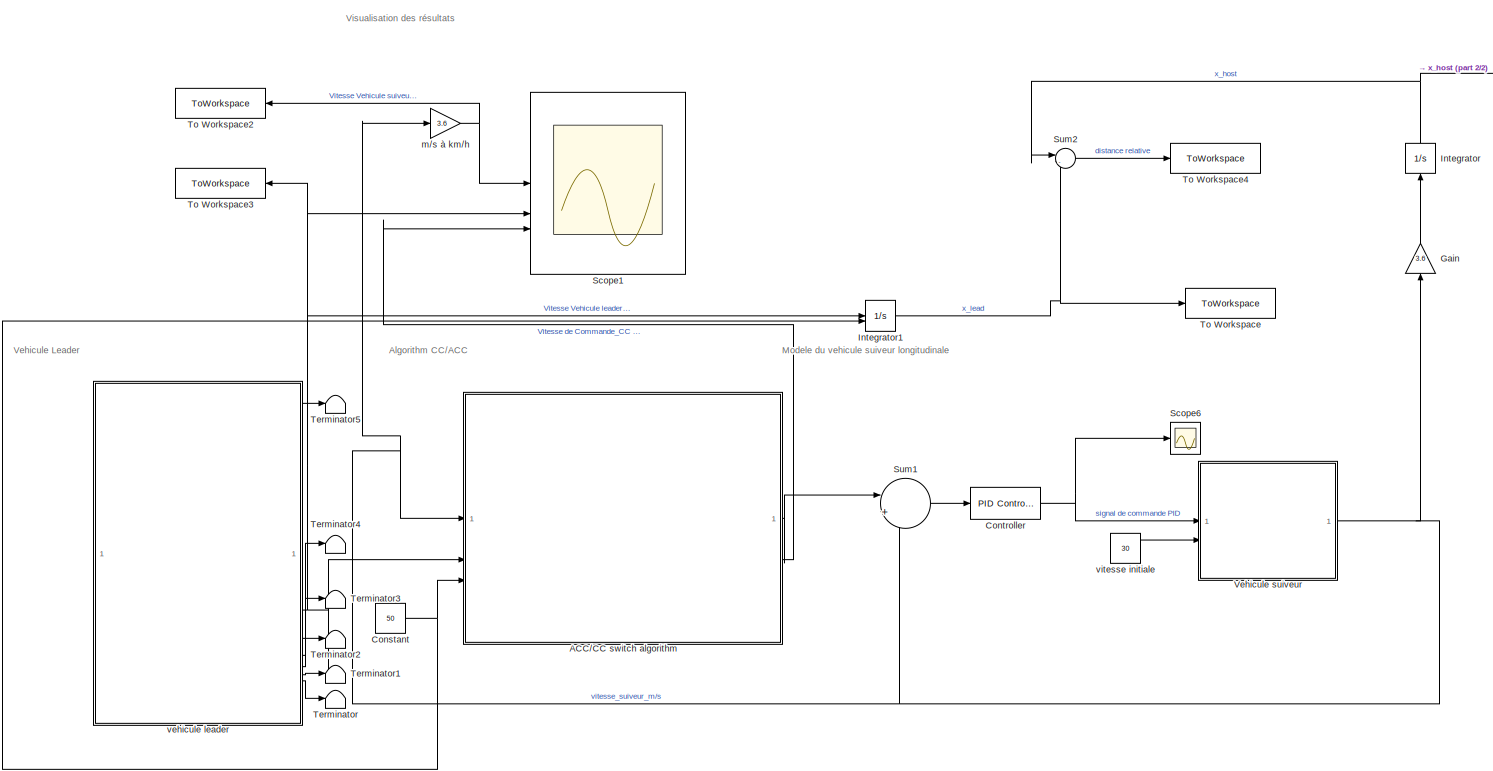
[diagram: root canvas - part 1/2, most of the canvas]
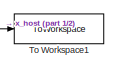
[diagram: root canvas - part 2/2, top right region]
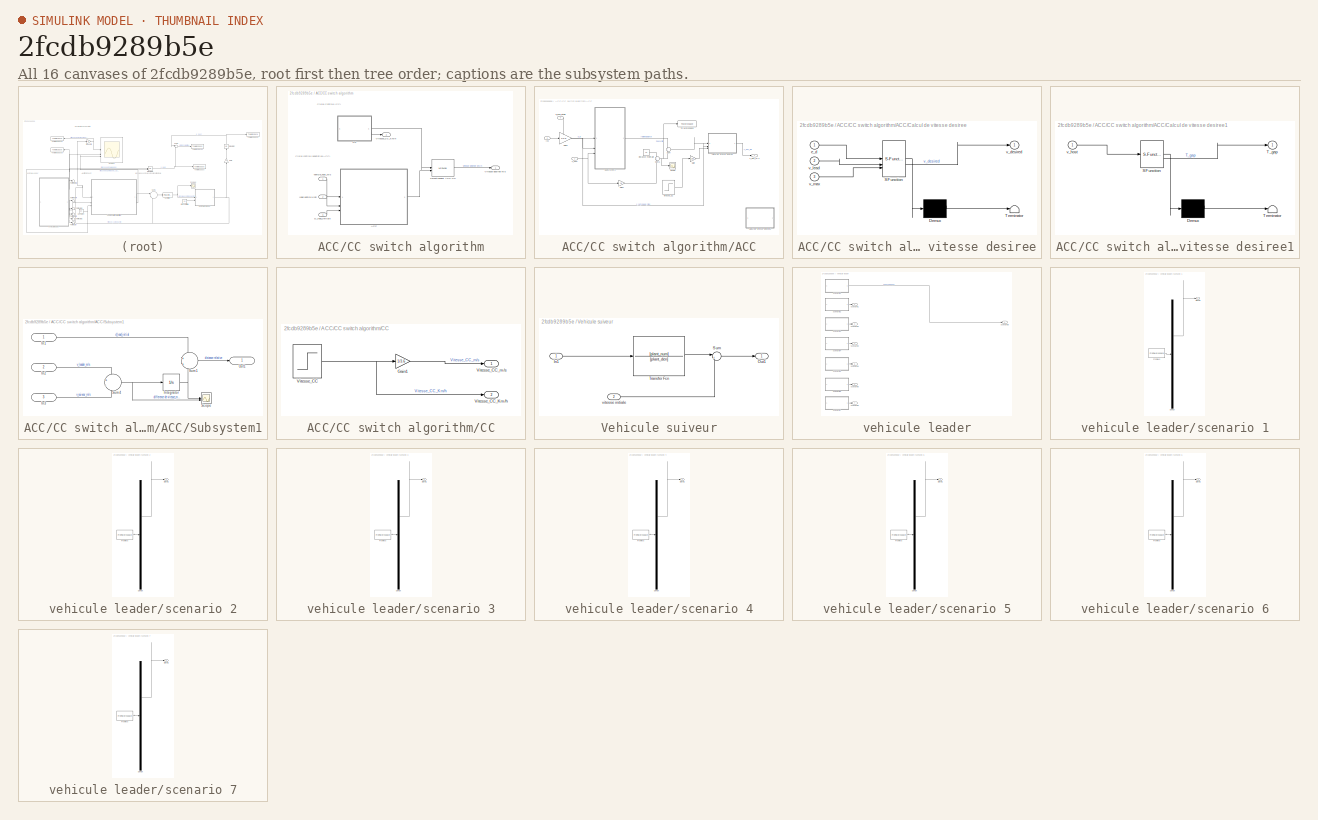
[diagram: thumbnail index - all 16 canvases of the model, root first then tree order]
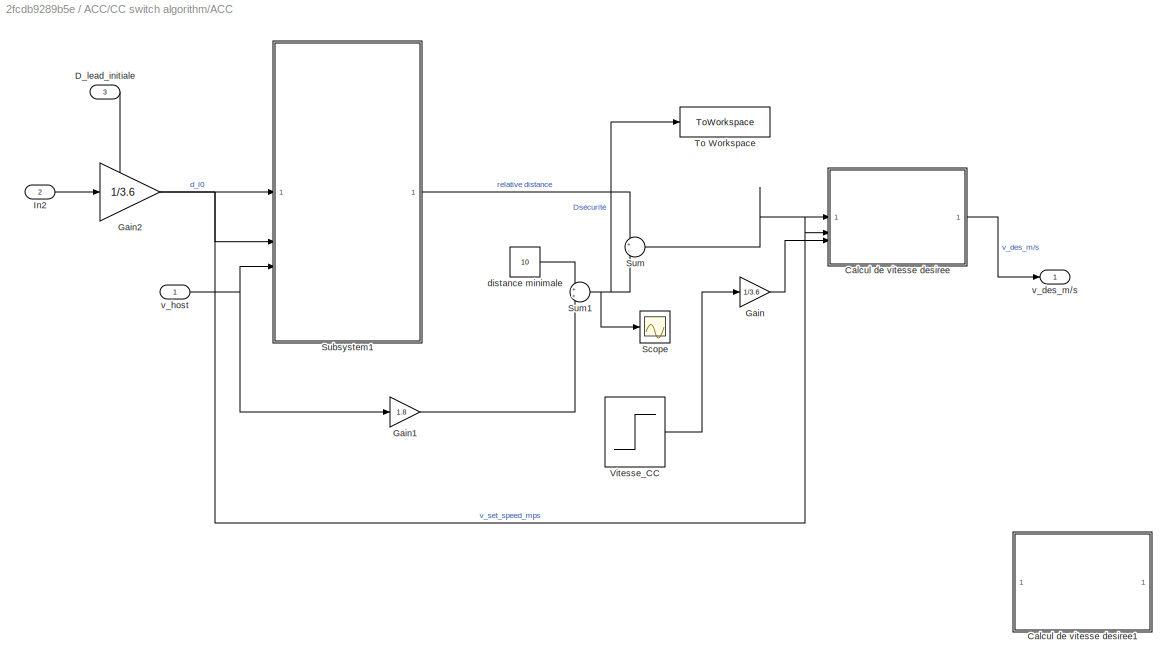
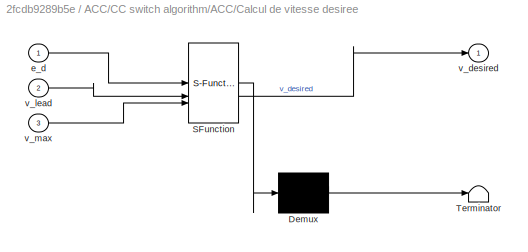
MODEL slx_2fcdb9289b5e
KIND model
CONFIG AbsTol = auto
CONFIG EnableMultiTasking = off
CONFIG FixedStep = auto
CONFIG MaxStep = auto
CONFIG MinStep = auto
CONFIG RelTol = 1e-3
CONFIG SampleTimeConstraint = Unconstrained
CONFIG SolverName = VariableStepAuto
CONFIG StartTime = 0.0
CONFIG StopTime = 200
BLOCK [SubSystem] ACC//CC switch algorithm
BLOCK [SubSystem] ACC//CC switch algorithm/ACC
BLOCK [SubSystem] ACC//CC switch algorithm/ACC/Calcul de vitesse desiree
  ErrorFcn = Stateflow.Translate.translate
  PermitHierarchicalResolution = ExplicitOnly
  SFBlockType = MATLAB Function
  TreatAsAtomicUnit = on
BLOCK [Demux] ACC//CC switch algorithm/ACC/Calcul de vitesse desiree/ Demux 
  Outputs = 1
BLOCK [S-Function] ACC//CC switch algorithm/ACC/Calcul de vitesse desiree/ SFunction 
  EnableBusSupport = on
  FunctionName = sf_sfun
  PortCounts = [3 2]
  SFcnIsStateOwnerBlock = off
  SFunctionDeploymentMode = off
  Tag = Stateflow S-Function 2
BLOCK [Terminator] ACC//CC switch algorithm/ACC/Calcul de vitesse desiree/ Terminator 
BLOCK [Inport] ACC//CC switch algorithm/ACC/Calcul de vitesse desiree/e_d
BLOCK [Outport] ACC//CC switch algorithm/ACC/Calcul de vitesse desiree/v_desired
BLOCK [Inport] ACC//CC switch algorithm/ACC/Calcul de vitesse desiree/v_lead
  Port = 2
BLOCK [Inport] ACC//CC switch algorithm/ACC/Calcul de vitesse desiree/v_max
  Port = 3
BLOCK [SubSystem] ACC//CC switch algorithm/ACC/Calcul de vitesse desiree1
  ErrorFcn = Stateflow.Translate.translate
  PermitHierarchicalResolution = ExplicitOnly
  SFBlockType = MATLAB Function
  TreatAsAtomicUnit = on
BLOCK [Demux] ACC//CC switch algorithm/ACC/Calcul de vitesse desiree1/ Demux 
  Outputs = 1
BLOCK [S-Function] ACC//CC switch algorithm/ACC/Calcul de vitesse desiree1/ SFunction 
  EnableBusSupport = on
  FunctionName = sf_sfun
  PortCounts = [1 2]
  SFcnIsStateOwnerBlock = off
  SFunctionDeploymentMode = off
  Tag = Stateflow S-Function 1
BLOCK [Terminator] ACC//CC switch algorithm/ACC/Calcul de vitesse desiree1/ Terminator 
BLOCK [Outport] ACC//CC switch algorithm/ACC/Calcul de vitesse desiree1/T_gap
BLOCK [Inport] ACC//CC switch algorithm/ACC/Calcul de vitesse desiree1/v_host
BLOCK [Inport] ACC//CC switch algorithm/ACC/D_lead_initiale
  Port = 3
BLOCK [Gain] ACC//CC switch algorithm/ACC/Gain
  Gain = 1/3.6
BLOCK [Gain] ACC//CC switch algorithm/ACC/Gain1
  Gain = 1.8
BLOCK [Gain] ACC//CC switch algorithm/ACC/Gain2
  Gain = 1/3.6
BLOCK [Inport] ACC//CC switch algorithm/ACC/In2
  Port = 2
BLOCK [Scope] ACC//CC switch algorithm/ACC/Scope
  Floating = off
  NumInputPorts = 1
  ScopeSpecificationString = Simulink.scopes.TimeScopeBlockCfg('CurrentConfiguration', extmgr.ConfigurationSet(extmgr.Configuration('Core','General UI',true),extmgr.Configuration('Core','Source UI',true),extmgr.Configuration('Sources','WiredSimulink',true,'DataLoggingVariableName','ScopeData1'),extmgr.Configuration('Visuals','Time Domain',true,'SerializedDisplays',{struct('MinYLimReal','45.13559','MaxYLimReal','66.09605','YLa...<+1426ch>
BLOCK [SubSystem] ACC//CC switch algorithm/ACC/Subsystem1
BLOCK [Inport] ACC//CC switch algorithm/ACC/Subsystem1/In1
  IconDisplay = Signal name
BLOCK [Inport] ACC//CC switch algorithm/ACC/Subsystem1/In2
  IconDisplay = Signal name
  Port = 2
BLOCK [Inport] ACC//CC switch algorithm/ACC/Subsystem1/In3
  IconDisplay = Signal name
  Port = 3
BLOCK [Integrator] ACC//CC switch algorithm/ACC/Subsystem1/Integrator
BLOCK [Outport] ACC//CC switch algorithm/ACC/Subsystem1/Out1
  IconDisplay = Signal name
BLOCK [Scope] ACC//CC switch algorithm/ACC/Subsystem1/Scope
  Floating = off
  NumInputPorts = 2
  ScopeSpecificationString = Simulink.scopes.TimeScopeBlockCfg('CurrentConfiguration', extmgr.ConfigurationSet(extmgr.Configuration('Core','General UI',true),extmgr.Configuration('Core','Source UI',true),extmgr.Configuration('Sources','WiredSimulink',true,'DataLoggingVariableName','ScopeData2'),extmgr.Configuration('Visuals','Time Domain',true,'SerializedDisplays',{struct('MinYLimReal','-159.43531','MaxYLimReal','1414.62086',...<+1442ch>
BLOCK [Sum] ACC//CC switch algorithm/ACC/Subsystem1/Sum1
BLOCK [Sum] ACC//CC switch algorithm/ACC/Subsystem1/Sum4
  Inputs = +-
BLOCK [Sum] ACC//CC switch algorithm/ACC/Sum
  Inputs = +-
BLOCK [Sum] ACC//CC switch algorithm/ACC/Sum1
BLOCK [ToWorkspace] ACC//CC switch algorithm/ACC/To Workspace
  FixptAsFi = on
  MaxDataPoints = inf
  SampleTime = -1
  SaveFormat = Structure With Time
  VariableName = Dsec
BLOCK [Step] ACC//CC switch algorithm/ACC/Vitesse_CC
  After = V_set_speed
  SampleTime = 0
BLOCK [Constant] ACC//CC switch algorithm/ACC/distance minimale
  Value = 10
BLOCK [Outport] ACC//CC switch algorithm/ACC/v_des_m//s
BLOCK [Inport] ACC//CC switch algorithm/ACC/v_host
BLOCK [SubSystem] ACC//CC switch algorithm/CC
BLOCK [Gain] ACC//CC switch algorithm/CC/Gain1
  Gain = 1/3.6
BLOCK [Step] ACC//CC switch algorithm/CC/Vitesse_CC
  After = V_set_speed
  SampleTime = 0
BLOCK [Outport] ACC//CC switch algorithm/CC/Vitesse_CC_Km//h
  Port = 2
BLOCK [Outport] ACC//CC switch algorithm/CC/Vitesse_CC_m//s
BLOCK [Inport] ACC//CC switch algorithm/D_lead_initiale
  Port = 3
BLOCK [MinMax] ACC//CC switch algorithm/Selectionneur ACC-CC
  Inputs = 2
  NameLocation = top
BLOCK [Outport] ACC//CC switch algorithm/Vitesse desiree m//s
BLOCK [Outport] ACC//CC switch algorithm/Vitesse_CC_Km//h
  Port = 2
BLOCK [Inport] ACC//CC switch algorithm/lead vehicle Kph
  Port = 2
BLOCK [Inport] ACC//CC switch algorithm/vehicle_host_m//s
BLOCK [Constant] Constant
  Value = 50
BLOCK [Reference] Controller  REF=slpidlib/PID Controller
  SourceBlock = slpidlib/PID Controller
  SourceType = PID 1dof
BLOCK [Gain] Gain
  Gain = 3.6
  NameLocation = right
BLOCK [Integrator] Integrator
  NameLocation = right
BLOCK [Integrator] Integrator1
  InitialCondition = 50
  InitialConditionSource = external
BLOCK [Scope] Scope1
  Floating = off
  NumInputPorts = 3
  ScopeSpecificationString = Simulink.scopes.TimeScopeBlockCfg('CurrentConfiguration', extmgr.ConfigurationSet(extmgr.Configuration('Core','General UI',true),extmgr.Configuration('Core','Source UI',true),extmgr.Configuration('Sources','WiredSimulink',true,'DataLoggingVariableName','ScopeData1'),extmgr.Configuration('Visuals','Time Domain',true,'SerializedDisplays',{struct('MinYLimReal','-15.00000','MaxYLimReal','135.00000','Y...<+1507ch>
BLOCK [Scope] Scope6
  Floating = off
  NumInputPorts = 1
  ScopeSpecificationString = Simulink.scopes.TimeScopeBlockCfg('CurrentConfiguration', extmgr.ConfigurationSet(extmgr.Configuration('Core','General UI',true),extmgr.Configuration('Core','Source UI',true),extmgr.Configuration('Sources','WiredSimulink',true,'DataLoggingVariableName','ScopeData2'),extmgr.Configuration('Visuals','Time Domain',true,'SerializedDisplays',{struct('MinYLimReal','-5750.00000','MaxYLimReal','5301.03049'...<+1503ch>
BLOCK [Sum] Sum1
  Inputs = |+-
  NameLocation = top
BLOCK [Sum] Sum2
  Inputs = |-+
BLOCK [Terminator] Terminator
BLOCK [Terminator] Terminator1
BLOCK [Terminator] Terminator2
BLOCK [Terminator] Terminator3
BLOCK [Terminator] Terminator4
BLOCK [Terminator] Terminator5
BLOCK [ToWorkspace] To Workspace
  MaxDataPoints = inf
  SampleTime = -1
  SaveFormat = Structure With Time
  VariableName = x_lead
BLOCK [ToWorkspace] To Workspace1
  MaxDataPoints = inf
  SampleTime = -1
  SaveFormat = Structure With Time
  VariableName = x_host
BLOCK [ToWorkspace] To Workspace2
  FixptAsFi = on
  MaxDataPoints = inf
  SampleTime = -1
  SaveFormat = Structure With Time
  VariableName = v_lead
BLOCK [ToWorkspace] To Workspace3
  FixptAsFi = on
  MaxDataPoints = inf
  SampleTime = -1
  SaveFormat = Structure With Time
  VariableName = v_host
BLOCK [ToWorkspace] To Workspace4
  FixptAsFi = on
  MaxDataPoints = inf
  SampleTime = -1
  SaveFormat = Structure With Time
  VariableName = Drel
BLOCK [SubSystem] Vehicule suiveur
BLOCK [Inport] Vehicule suiveur/In1
BLOCK [Outport] Vehicule suiveur/Out1
BLOCK [Sum] Vehicule suiveur/Sum
  Inputs = |++
BLOCK [TransferFcn] Vehicule suiveur/Transfer Fcn
  Denominator = [plant_den]
  Numerator = [plant_num]
BLOCK [Inport] Vehicule suiveur/vitesse initiale
  Port = 2
BLOCK [Gain] m//s à km//h
  Gain = 3.6
BLOCK [SubSystem] vehicule leader
BLOCK [Outport] vehicule leader/scenario  1
BLOCK [Outport] vehicule leader/scenario  2
  Port = 3
BLOCK [Outport] vehicule leader/scenario  3
  Port = 4
BLOCK [Outport] vehicule leader/scenario  4
  Port = 5
BLOCK [Outport] vehicule leader/scenario  5
  Port = 6
BLOCK [Outport] vehicule leader/scenario  6
  Port = 7
BLOCK [SubSystem] vehicule leader/scenario 1
  ClipboardFcn = sigbuilder_block('clipboard');
  CloseFcn = sigbuilder_block('close');
  ContinueFcn = sigbuilder_block('continue');
  CopyFcn = sigbuilder_block('copy');
  DeleteFcn = sigbuilder_block('delete');
  LoadFcn = sigbuilder_block('load');
  MaskHideContents = on
  ModelCloseFcn = sigbuilder_block('modelClose');
  NameChangeFcn = sigbuilder_block('namechange');
  OpenFcn = sigbuilder_block('open',[6 6 1012.5 506.25 ]);
  PauseFcn = sigbuilder_block('pause');
  PreSaveFcn = sigbuilder_block('preSave');
  StartFcn = sigbuilder_block('start');
  StopFcn = sigbuilder_block('stop');
  Tag = STV Subsys
BLOCK [Demux] vehicule leader/scenario 1/Demux
  DisplayOption = none
  Outputs = 1
  Tag = STV Demux
BLOCK [FromWorkspace] vehicule leader/scenario 1/FromWs
  Tag = STV FromWs
  VariableName = tuvar
BLOCK [Outport] vehicule leader/scenario 1/Signal 1
  Tag = STV Outport
BLOCK [SubSystem] vehicule leader/scenario 2
  ClipboardFcn = sigbuilder_block('clipboard');
  CloseFcn = sigbuilder_block('close');
  ContinueFcn = sigbuilder_block('continue');
  CopyFcn = sigbuilder_block('copy');
  DeleteFcn = sigbuilder_block('delete');
  LoadFcn = sigbuilder_block('load');
  MaskHideContents = on
  ModelCloseFcn = sigbuilder_block('modelClose');
  NameChangeFcn = sigbuilder_block('namechange');
  OpenFcn = sigbuilder_block('open',[34.8 6 766.8 506.25 ]);
  PauseFcn = sigbuilder_block('pause');
  PreSaveFcn = sigbuilder_block('preSave');
  StartFcn = sigbuilder_block('start');
  StopFcn = sigbuilder_block('stop');
  Tag = STV Subsys
BLOCK [Demux] vehicule leader/scenario 2/Demux
  DisplayOption = none
  Outputs = 1
  Tag = STV Demux
BLOCK [FromWorkspace] vehicule leader/scenario 2/FromWs
  Tag = STV FromWs
  VariableName = tuvar
BLOCK [Outport] vehicule leader/scenario 2/Signal 1
  Tag = STV Outport
BLOCK [SubSystem] vehicule leader/scenario 3
  ClipboardFcn = sigbuilder_block('clipboard');
  CloseFcn = sigbuilder_block('close');
  ContinueFcn = sigbuilder_block('continue');
  CopyFcn = sigbuilder_block('copy');
  DeleteFcn = sigbuilder_block('delete');
  LoadFcn = sigbuilder_block('load');
  MaskHideContents = on
  ModelCloseFcn = sigbuilder_block('modelClose');
  NameChangeFcn = sigbuilder_block('namechange');
  OpenFcn = sigbuilder_block('open',[34.8 6 766.8 506.25 ]);
  PauseFcn = sigbuilder_block('pause');
  PreSaveFcn = sigbuilder_block('preSave');
  StartFcn = sigbuilder_block('start');
  StopFcn = sigbuilder_block('stop');
  Tag = STV Subsys
BLOCK [Demux] vehicule leader/scenario 3/Demux
  DisplayOption = none
  Outputs = 1
  Tag = STV Demux
BLOCK [FromWorkspace] vehicule leader/scenario 3/FromWs
  Tag = STV FromWs
  VariableName = tuvar
BLOCK [Outport] vehicule leader/scenario 3/Signal 1
  Tag = STV Outport
BLOCK [SubSystem] vehicule leader/scenario 4
  ClipboardFcn = sigbuilder_block('clipboard');
  CloseFcn = sigbuilder_block('close');
  ContinueFcn = sigbuilder_block('continue');
  CopyFcn = sigbuilder_block('copy');
  DeleteFcn = sigbuilder_block('delete');
  LoadFcn = sigbuilder_block('load');
  MaskHideContents = on
  ModelCloseFcn = sigbuilder_block('modelClose');
  NameChangeFcn = sigbuilder_block('namechange');
  OpenFcn = sigbuilder_block('open',[34.8 6 766.8 506.25 ]);
  PauseFcn = sigbuilder_block('pause');
  PreSaveFcn = sigbuilder_block('preSave');
  StartFcn = sigbuilder_block('start');
  StopFcn = sigbuilder_block('stop');
  Tag = STV Subsys
BLOCK [Demux] vehicule leader/scenario 4/Demux
  DisplayOption = none
  Outputs = 1
  Tag = STV Demux
BLOCK [FromWorkspace] vehicule leader/scenario 4/FromWs
  Tag = STV FromWs
  VariableName = tuvar
BLOCK [Outport] vehicule leader/scenario 4/Signal 1
  Tag = STV Outport
BLOCK [SubSystem] vehicule leader/scenario 5
  ClipboardFcn = sigbuilder_block('clipboard');
  CloseFcn = sigbuilder_block('close');
  ContinueFcn = sigbuilder_block('continue');
  CopyFcn = sigbuilder_block('copy');
  DeleteFcn = sigbuilder_block('delete');
  LoadFcn = sigbuilder_block('load');
  MaskHideContents = on
  ModelCloseFcn = sigbuilder_block('modelClose');
  NameChangeFcn = sigbuilder_block('namechange');
  OpenFcn = sigbuilder_block('open',[34.8 6 766.8 506.25 ]);
  PauseFcn = sigbuilder_block('pause');
  PreSaveFcn = sigbuilder_block('preSave');
  StartFcn = sigbuilder_block('start');
  StopFcn = sigbuilder_block('stop');
  Tag = STV Subsys
BLOCK [Demux] vehicule leader/scenario 5/Demux
  DisplayOption = none
  Outputs = 1
  Tag = STV Demux
BLOCK [FromWorkspace] vehicule leader/scenario 5/FromWs
  Tag = STV FromWs
  VariableName = tuvar
BLOCK [Outport] vehicule leader/scenario 5/Signal 1
  Tag = STV Outport
BLOCK [SubSystem] vehicule leader/scenario 6
  ClipboardFcn = sigbuilder_block('clipboard');
  CloseFcn = sigbuilder_block('close');
  ContinueFcn = sigbuilder_block('continue');
  CopyFcn = sigbuilder_block('copy');
  DeleteFcn = sigbuilder_block('delete');
  LoadFcn = sigbuilder_block('load');
  MaskHideContents = on
  ModelCloseFcn = sigbuilder_block('modelClose');
  NameChangeFcn = sigbuilder_block('namechange');
  OpenFcn = sigbuilder_block('open',[34.8 6 766.8 506.25 ]);
  PauseFcn = sigbuilder_block('pause');
  PreSaveFcn = sigbuilder_block('preSave');
  StartFcn = sigbuilder_block('start');
  StopFcn = sigbuilder_block('stop');
  Tag = STV Subsys
BLOCK [Demux] vehicule leader/scenario 6/Demux
  DisplayOption = none
  Outputs = 1
  Tag = STV Demux
BLOCK [FromWorkspace] vehicule leader/scenario 6/FromWs
  Tag = STV FromWs
  VariableName = tuvar
BLOCK [Outport] vehicule leader/scenario 6/Signal 1
  Tag = STV Outport
BLOCK [SubSystem] vehicule leader/scenario 7
  ClipboardFcn = sigbuilder_block('clipboard');
  CloseFcn = sigbuilder_block('close');
  ContinueFcn = sigbuilder_block('continue');
  CopyFcn = sigbuilder_block('copy');
  DeleteFcn = sigbuilder_block('delete');
  LoadFcn = sigbuilder_block('load');
  MaskHideContents = on
  ModelCloseFcn = sigbuilder_block('modelClose');
  NameChangeFcn = sigbuilder_block('namechange');
  OpenFcn = sigbuilder_block('open',[6 6 1012.5 506.25 ]);
  PauseFcn = sigbuilder_block('pause');
  PreSaveFcn = sigbuilder_block('preSave');
  StartFcn = sigbuilder_block('start');
  StopFcn = sigbuilder_block('stop');
  Tag = STV Subsys
BLOCK [Demux] vehicule leader/scenario 7/Demux
  DisplayOption = none
  Outputs = 1
  Tag = STV Demux
BLOCK [FromWorkspace] vehicule leader/scenario 7/FromWs
  Tag = STV FromWs
  VariableName = tuvar
BLOCK [Outport] vehicule leader/scenario 7/Signal 1
  Tag = STV Outport
BLOCK [Outport] vehicule leader/scenario 8
  Port = 2
BLOCK [Constant] vitesse initiale
  Value = 30
ANNOTATION (root): Algorithm CC/ACC
ANNOTATION (root): Modele du vehicule suiveur longitudinale
ANNOTATION (root): Vehicule Leader
ANNOTATION (root): Visualisation des résultats
ANNOTATION ACC//CC switch algorithm: Cruise Controle (CC)
ANNOTATION ACC//CC switch algorithm: Cruise controle adaptative(ACC)
LINE ACC//CC switch algorithm/ACC/Calcul de vitesse desiree:1 -> ACC//CC switch algorithm/ACC/v_des_m//s:1
LINE ACC//CC switch algorithm/ACC/D_lead_initiale:1 -> ACC//CC switch algorithm/ACC/Subsystem1:1
LINE ACC//CC switch algorithm/ACC/Gain1:1 -> ACC//CC switch algorithm/ACC/Sum1:2
NET ACC//CC switch algorithm/ACC/Gain2:1 -> ACC//CC switch algorithm/ACC/Calcul de vitesse desiree:2, ACC//CC switch algorithm/ACC/Subsystem1:2
LINE ACC//CC switch algorithm/ACC/Gain:1 -> ACC//CC switch algorithm/ACC/Calcul de vitesse desiree:3
LINE ACC//CC switch algorithm/ACC/In2:1 -> ACC//CC switch algorithm/ACC/Gain2:1
LINE ACC//CC switch algorithm/ACC/Subsystem1/In1:1 -> ACC//CC switch algorithm/ACC/Subsystem1/Sum1:1
LINE ACC//CC switch algorithm/ACC/Subsystem1/In2:1 -> ACC//CC switch algorithm/ACC/Subsystem1/Sum4:1
LINE ACC//CC switch algorithm/ACC/Subsystem1/In3:1 -> ACC//CC switch algorithm/ACC/Subsystem1/Sum4:2
NET ACC//CC switch algorithm/ACC/Subsystem1/Integrator:1 -> ACC//CC switch algorithm/ACC/Subsystem1/Scope:1, ACC//CC switch algorithm/ACC/Subsystem1/Sum1:2
LINE ACC//CC switch algorithm/ACC/Subsystem1/Sum1:1 -> ACC//CC switch algorithm/ACC/Subsystem1/Out1:1
NET ACC//CC switch algorithm/ACC/Subsystem1/Sum4:1 -> ACC//CC switch algorithm/ACC/Subsystem1/Integrator:1, ACC//CC switch algorithm/ACC/Subsystem1/Scope:2
LINE ACC//CC switch algorithm/ACC/Subsystem1:1 -> ACC//CC switch algorithm/ACC/Sum:1
NET ACC//CC switch algorithm/ACC/Sum1:1 -> ACC//CC switch algorithm/ACC/Scope:1, ACC//CC switch algorithm/ACC/Sum:2, ACC//CC switch algorithm/ACC/To Workspace:1
LINE ACC//CC switch algorithm/ACC/Sum:1 -> ACC//CC switch algorithm/ACC/Calcul de vitesse desiree:1
LINE ACC//CC switch algorithm/ACC/Vitesse_CC:1 -> ACC//CC switch algorithm/ACC/Gain:1
LINE ACC//CC switch algorithm/ACC/distance minimale:1 -> ACC//CC switch algorithm/ACC/Sum1:1
NET ACC//CC switch algorithm/ACC/v_host:1 -> ACC//CC switch algorithm/ACC/Gain1:1, ACC//CC switch algorithm/ACC/Subsystem1:3
LINE ACC//CC switch algorithm/ACC:1 -> ACC//CC switch algorithm/Selectionneur ACC-CC:2
LINE ACC//CC switch algorithm/CC/Gain1:1 -> ACC//CC switch algorithm/CC/Vitesse_CC_m//s:1
NET ACC//CC switch algorithm/CC/Vitesse_CC:1 -> ACC//CC switch algorithm/CC/Gain1:1, ACC//CC switch algorithm/CC/Vitesse_CC_Km//h:1
LINE ACC//CC switch algorithm/CC:1 -> ACC//CC switch algorithm/Selectionneur ACC-CC:1
LINE ACC//CC switch algorithm/CC:2 -> ACC//CC switch algorithm/Vitesse_CC_Km//h:1
LINE ACC//CC switch algorithm/D_lead_initiale:1 -> ACC//CC switch algorithm/ACC:3
LINE ACC//CC switch algorithm/Selectionneur ACC-CC:1 -> ACC//CC switch algorithm/Vitesse desiree m//s:1
LINE ACC//CC switch algorithm/lead vehicle Kph:1 -> ACC//CC switch algorithm/ACC:2
LINE ACC//CC switch algorithm/vehicle_host_m//s:1 -> ACC//CC switch algorithm/ACC:1
LINE ACC//CC switch algorithm:1 -> Sum1:1
LINE ACC//CC switch algorithm:2 -> Scope1:3
NET Constant:1 -> ACC//CC switch algorithm:3, Integrator1:2
NET Controller:1 -> Scope6:1, Vehicule suiveur:1
LINE Gain:1 -> Integrator:1
NET Integrator1:1 -> Sum2:2, To Workspace:1
NET Integrator:1 -> Sum2:1, To Workspace1:1
LINE Sum1:1 -> Controller:1
LINE Sum2:1 -> To Workspace4:1
LINE Vehicule suiveur/In1:1 -> Vehicule suiveur/Transfer Fcn:1
LINE Vehicule suiveur/Sum:1 -> Vehicule suiveur/Out1:1
LINE Vehicule suiveur/Transfer Fcn:1 -> Vehicule suiveur/Sum:1
LINE Vehicule suiveur/vitesse initiale:1 -> Vehicule suiveur/Sum:2
NET Vehicule suiveur:1 -> ACC//CC switch algorithm:1, Gain:1, Sum1:2, m//s à km//h:1
NET m//s à km//h:1 -> Scope1:1, To Workspace2:1
LINE vehicule leader/scenario 1:1 -> vehicule leader/scenario 8:1
LINE vehicule leader/scenario 2:1 -> vehicule leader/scenario  1:1
LINE vehicule leader/scenario 3:1 -> vehicule leader/scenario  2:1
LINE vehicule leader/scenario 4:1 -> vehicule leader/scenario  3:1
LINE vehicule leader/scenario 5:1 -> vehicule leader/scenario  4:1
LINE vehicule leader/scenario 6:1 -> vehicule leader/scenario  5:1
LINE vehicule leader/scenario 7:1 -> vehicule leader/scenario  6:1
LINE vehicule leader:1 -> Terminator5:1
NET vehicule leader:2 -> ACC//CC switch algorithm:2, Integrator1:1, Scope1:2, To Workspace3:1
LINE vehicule leader:3 -> Terminator4:1
LINE vehicule leader:4 -> Terminator3:1
LINE vehicule leader:5 -> Terminator2:1
LINE vehicule leader:6 -> Terminator1:1
LINE vehicule leader:7 -> Terminator:1
LINE vitesse initiale:1 -> Vehicule suiveur:2
note: NET lines group one-source signal fan-out (src -> all destinations, sorted); 1:1 wires keep LINE
CHART ACC//CC switch algorithm/ACC/Calcul de vitesse desiree1 states=1 transitions=1
  STATE_LABEL 'eML_blk_kernel()'
  STATE_LABEL 'SCRIPT:\nfunction T_gap = getTimeGap(v_host)\n%#codegen\n\n% This function sets a desired time gap based on velocity\n\nif v_host <= 10\n    T_gap = 1.5;\nelseif v_host <= 20\n    T_gap = 2;\nelseif v_host <= 30\n    T_gap = 3.5;\nelse\n    T_gap = 4;\nend\n'
CHART ACC//CC switch algorithm/ACC/Calcul de vitesse desiree states=1 transitions=1
  STATE_LABEL 'eML_blk_kernel()'
  STATE_LABEL 'SCRIPT:\nfunction v_desired = compute_desired_velocity(e_d, v_lead, v_max)\n%#codegen\n% Calculates desired velocity based on distance error and lead car speed\n% Inputs:\n%   e_d     - Distance error (m)\n%   v_lead  - Velocity of lead vehicle (m/s)\n%   v_max   - Max allowed speed (m/s)\n%\n% Output:\n%   v_desired - Desired velocity for host vehicle (m/s)\n\n    % Proportional gain for distance error\n    K...<+263ch>'
CHART  states=0 transitions=0
CHART  states=0 transitions=0
